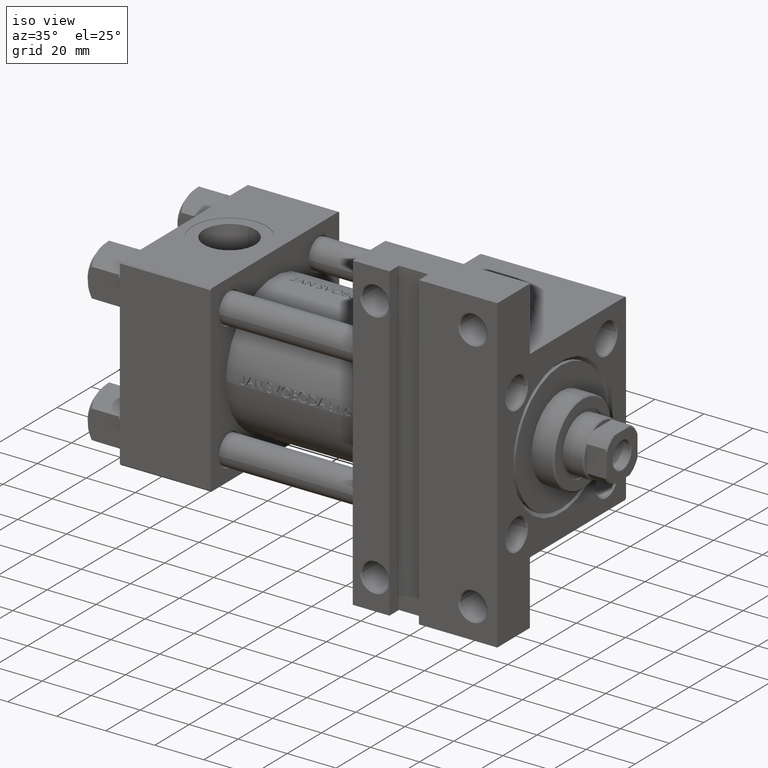
[diagram: clean part render]
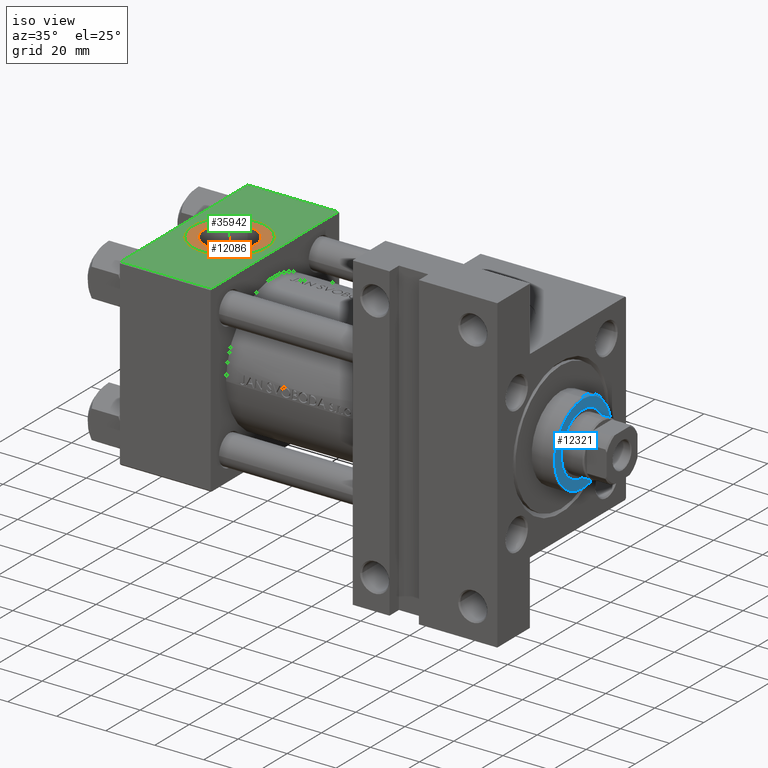
[diagram: same view with three faces highlighted in distinct colors, each labeled with its STEP entity id]
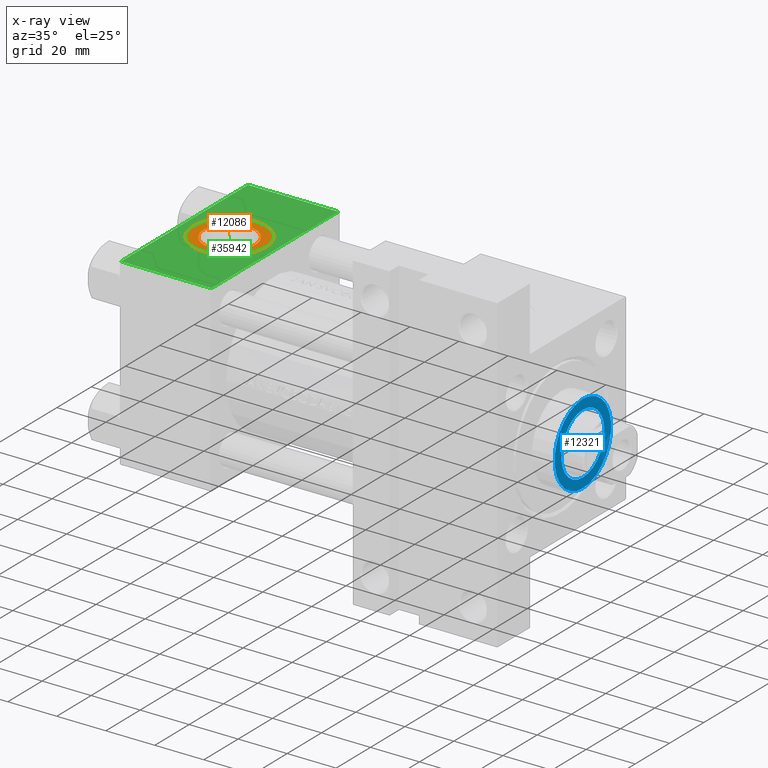
[diagram: x-ray of the same camera — body ghosted, the three highlighted faces saturated]
A machine part, iso view with three faces highlighted in distinct colors.
The next image is the same camera in x-ray (body ghosted, the three faces saturated) — at least one of them is partly hidden behind the body in this view.
Their STEP definitions:

[orange] entity #12086 — the highlighted planar face has unit normal (0, -0, 1).
#870 = DIRECTION ( 'NONE',  ( 0.000000000000000000, 0.000000000000000000, -1.000000000000000000 ) ) ;
#1218 = ORIENTED_EDGE ( 'NONE', *, *, #2756, .F. ) ;
#2756 = EDGE_CURVE ( 'NONE', #23813, #21137, #5189, .T. ) ;
#5116 = DIRECTION ( 'NONE',  ( 0.000000000000000000, -1.000000000000000000, -8.673617379884036705E-17 ) ) ;
#5189 = CIRCLE ( 'NONE', #33264, 10.48000000000000043 ) ;
#5304 = CIRCLE ( 'NONE', #27757, 15.00000000000000178 ) ;
#6043 = FACE_OUTER_BOUND ( 'NONE', #12647, .T. ) ;
#7810 = AXIS2_PLACEMENT_3D ( 'NONE', #10554, #21359, #13811 ) ;
#10554 = CARTESIAN_POINT ( 'NONE',  ( 18.50000000000000000, -37.30000000000000426, -3.452099717193846907E-15 ) ) ;
#10679 = AXIS2_PLACEMENT_3D ( 'NONE', #42204, #16035, #37914 ) ;
#12086 = ADVANCED_FACE ( 'NONE', ( #44734, #6043 ), #25625, .T. ) ;
#12571 = CARTESIAN_POINT ( 'NONE',  ( 18.50000000000000000, -37.30000000000000426, -3.452099717193846907E-15 ) ) ;
#12647 = EDGE_LOOP ( 'NONE', ( #23434, #36677 ) ) ;
#13087 = DIRECTION ( 'NONE',  ( 0.000000000000000000, 0.000000000000000000, -1.000000000000000000 ) ) ;
#13811 = DIRECTION ( 'NONE',  ( 0.000000000000000000, 8.673617379884036705E-17, -1.000000000000000000 ) ) ;
#14408 = CARTESIAN_POINT ( 'NONE',  ( 18.50000000000000000, -37.30000000000000426, 10.47999999999999687 ) ) ;
#14540 = VERTEX_POINT ( 'NONE', #15293 ) ;
#15293 = CARTESIAN_POINT ( 'NONE',  ( 18.50000000000000000, -37.30000000000000426, -15.00000000000000533 ) ) ;
#16035 = DIRECTION ( 'NONE',  ( 0.000000000000000000, -1.000000000000000000, -8.673617379884036705E-17 ) ) ;
#16357 = EDGE_CURVE ( 'NONE', #21137, #23813, #49203, .T. ) ;
#19907 = CARTESIAN_POINT ( 'NONE',  ( 18.50000000000000355, -37.30000000000000426, 14.99999999999999822 ) ) ;
#21137 = VERTEX_POINT ( 'NONE', #14408 ) ;
#21359 = DIRECTION ( 'NONE',  ( 0.000000000000000000, -1.000000000000000000, -8.673617379884036705E-17 ) ) ;
#23434 = ORIENTED_EDGE ( 'NONE', *, *, #35357, .T. ) ;
#23813 = VERTEX_POINT ( 'NONE', #30364 ) ;
#24855 = DIRECTION ( 'NONE',  ( 0.000000000000000000, -1.000000000000000000, -8.673617379884036705E-17 ) ) ;
#25625 = PLANE ( 'NONE',  #7810 ) ;
#27757 = AXIS2_PLACEMENT_3D ( 'NONE', #32154, #35939, #13087 ) ;
#30364 = CARTESIAN_POINT ( 'NONE',  ( 18.50000000000000000, -37.30000000000000426, -10.48000000000000398 ) ) ;
#32154 = CARTESIAN_POINT ( 'NONE',  ( 18.50000000000000000, -37.30000000000000426, -3.452099717193846907E-15 ) ) ;
#33264 = AXIS2_PLACEMENT_3D ( 'NONE', #12571, #24855, #43973 ) ;
#35357 = EDGE_CURVE ( 'NONE', #14540, #44484, #40405, .T. ) ;
#35939 = DIRECTION ( 'NONE',  ( 0.000000000000000000, -1.000000000000000000, -8.673617379884036705E-17 ) ) ;
#36677 = ORIENTED_EDGE ( 'NONE', *, *, #48534, .T. ) ;
#37914 = DIRECTION ( 'NONE',  ( 0.000000000000000000, 0.000000000000000000, -1.000000000000000000 ) ) ;
#40405 = CIRCLE ( 'NONE', #47628, 15.00000000000000178 ) ;
#40653 = EDGE_LOOP ( 'NONE', ( #1218, #49363 ) ) ;
#42204 = CARTESIAN_POINT ( 'NONE',  ( 18.50000000000000000, -37.30000000000000426, -3.452099717193846907E-15 ) ) ;
#43973 = DIRECTION ( 'NONE',  ( 0.000000000000000000, 0.000000000000000000, -1.000000000000000000 ) ) ;
#44484 = VERTEX_POINT ( 'NONE', #19907 ) ;
#44734 = FACE_BOUND ( 'NONE', #40653, .T. ) ;
#47578 = CARTESIAN_POINT ( 'NONE',  ( 18.50000000000000000, -37.30000000000000426, -3.452099717193846907E-15 ) ) ;
#47628 = AXIS2_PLACEMENT_3D ( 'NONE', #47578, #5116, #870 ) ;
#48534 = EDGE_CURVE ( 'NONE', #44484, #14540, #5304, .T. ) ;
#49203 = CIRCLE ( 'NONE', #10679, 10.48000000000000043 ) ;
#49363 = ORIENTED_EDGE ( 'NONE', *, *, #16357, .F. ) ;

[blue] entity #12321 — the highlighted planar face has unit normal (1, 0, 0).
#2052 = DIRECTION ( 'NONE',  ( 1.000000000000000000, 0.000000000000000000, 0.000000000000000000 ) ) ;
#3350 = DIRECTION ( 'NONE',  ( 1.000000000000000000, 0.000000000000000000, 0.000000000000000000 ) ) ;
#3901 = PLANE ( 'NONE',  #23832 ) ;
#4241 = EDGE_CURVE ( 'NONE', #42235, #14366, #5544, .T. ) ;
#4727 = CARTESIAN_POINT ( 'NONE',  ( 12.50000000000000000, 0.000000000000000000, 37.69999999999999574 ) ) ;
#5161 = DIRECTION ( 'NONE',  ( 0.000000000000000000, 0.000000000000000000, 1.000000000000000000 ) ) ;
#5174 = CARTESIAN_POINT ( 'NONE',  ( -12.50000000000000000, 1.530808498934191521E-15, 37.69999999999999574 ) ) ;
#5544 = CIRCLE ( 'NONE', #33621, 16.50000000000000000 ) ;
#5553 = EDGE_CURVE ( 'NONE', #14366, #42235, #38080, .T. ) ;
#6067 = EDGE_LOOP ( 'NONE', ( #23443, #25210 ) ) ;
#7106 = CARTESIAN_POINT ( 'NONE',  ( 0.000000000000000000, 0.000000000000000000, 37.69999999999999574 ) ) ;
#8443 = CARTESIAN_POINT ( 'NONE',  ( 0.000000000000000000, 0.000000000000000000, 37.69999999999999574 ) ) ;
#8829 = CARTESIAN_POINT ( 'NONE',  ( 0.000000000000000000, 0.000000000000000000, 37.69999999999999574 ) ) ;
#9228 = AXIS2_PLACEMENT_3D ( 'NONE', #8829, #40468, #2052 ) ;
#11004 = CIRCLE ( 'NONE', #21434, 12.50000000000000000 ) ;
#12321 = ADVANCED_FACE ( 'NONE', ( #26744, #42082 ), #3901, .T. ) ;
#12388 = EDGE_CURVE ( 'NONE', #37456, #32998, #11004, .T. ) ;
#14366 = VERTEX_POINT ( 'NONE', #42084 ) ;
#14505 = DIRECTION ( 'NONE',  ( 1.000000000000000000, 0.000000000000000000, -0.000000000000000000 ) ) ;
#16645 = AXIS2_PLACEMENT_3D ( 'NONE', #31941, #36215, #24916 ) ;
#18482 = ORIENTED_EDGE ( 'NONE', *, *, #4241, .T. ) ;
#21434 = AXIS2_PLACEMENT_3D ( 'NONE', #7106, #44808, #3350 ) ;
#22619 = EDGE_LOOP ( 'NONE', ( #18482, #48230 ) ) ;
#23443 = ORIENTED_EDGE ( 'NONE', *, *, #43279, .F. ) ;
#23832 = AXIS2_PLACEMENT_3D ( 'NONE', #26997, #48944, #14505 ) ;
#24916 = DIRECTION ( 'NONE',  ( 1.000000000000000000, 0.000000000000000000, 0.000000000000000000 ) ) ;
#25210 = ORIENTED_EDGE ( 'NONE', *, *, #12388, .F. ) ;
#26744 = FACE_BOUND ( 'NONE', #6067, .T. ) ;
#26997 = CARTESIAN_POINT ( 'NONE',  ( 0.000000000000000000, 0.000000000000000000, 37.69999999999999574 ) ) ;
#31110 = CIRCLE ( 'NONE', #16645, 12.50000000000000000 ) ;
#31941 = CARTESIAN_POINT ( 'NONE',  ( 0.000000000000000000, 0.000000000000000000, 37.69999999999999574 ) ) ;
#32263 = DIRECTION ( 'NONE',  ( 1.000000000000000000, 0.000000000000000000, 0.000000000000000000 ) ) ;
#32998 = VERTEX_POINT ( 'NONE', #4727 ) ;
#33621 = AXIS2_PLACEMENT_3D ( 'NONE', #8443, #5161, #32263 ) ;
#36215 = DIRECTION ( 'NONE',  ( 0.000000000000000000, 0.000000000000000000, 1.000000000000000000 ) ) ;
#37456 = VERTEX_POINT ( 'NONE', #5174 ) ;
#38080 = CIRCLE ( 'NONE', #9228, 16.50000000000000000 ) ;
#40468 = DIRECTION ( 'NONE',  ( 0.000000000000000000, 0.000000000000000000, 1.000000000000000000 ) ) ;
#42082 = FACE_OUTER_BOUND ( 'NONE', #22619, .T. ) ;
#42084 = CARTESIAN_POINT ( 'NONE',  ( 16.50000000000000000, 2.051283388571816887E-15, 37.69999999999999574 ) ) ;
#42235 = VERTEX_POINT ( 'NONE', #43334 ) ;
#43279 = EDGE_CURVE ( 'NONE', #32998, #37456, #31110, .T. ) ;
#43334 = CARTESIAN_POINT ( 'NONE',  ( -16.50000000000000000, 0.000000000000000000, 37.69999999999999574 ) ) ;
#44808 = DIRECTION ( 'NONE',  ( 0.000000000000000000, 0.000000000000000000, 1.000000000000000000 ) ) ;
#48230 = ORIENTED_EDGE ( 'NONE', *, *, #5553, .T. ) ;
#48944 = DIRECTION ( 'NONE',  ( 0.000000000000000000, 0.000000000000000000, 1.000000000000000000 ) ) ;

[green] entity #35942 — the highlighted planar face has unit normal (0, 0, -1).
#1155 = CARTESIAN_POINT ( 'NONE',  ( 37.00000000000000000, -37.50000000000000711, 37.49999999999999289 ) ) ;
#4292 = EDGE_CURVE ( 'NONE', #48717, #13677, #16451, .T. ) ;
#5359 = CARTESIAN_POINT ( 'NONE',  ( 0.000000000000000000, -37.50000000000000711, 37.49999999999999289 ) ) ;
#6573 = FACE_OUTER_BOUND ( 'NONE', #32437, .T. ) ;
#6830 = FACE_BOUND ( 'NONE', #32784, .T. ) ;
#7077 = DIRECTION ( 'NONE',  ( 0.000000000000000000, -9.251858538542971581E-17, 1.000000000000000000 ) ) ;
#7934 = ORIENTED_EDGE ( 'NONE', *, *, #12975, .T. ) ;
#8286 = CARTESIAN_POINT ( 'NONE',  ( 18.50000000000000355, -37.50000000000000711, 14.99999999999999822 ) ) ;
#9125 = CARTESIAN_POINT ( 'NONE',  ( 18.50000000000000000, -37.50000000000000711, -3.469446951953614978E-15 ) ) ;
#9923 = DIRECTION ( 'NONE',  ( -1.000000000000000000, 0.000000000000000000, 0.000000000000000000 ) ) ;
#10516 = CIRCLE ( 'NONE', #21725, 15.00000000000000178 ) ;
#10633 = EDGE_CURVE ( 'NONE', #48717, #35979, #10922, .T. ) ;
#10858 = EDGE_CURVE ( 'NONE', #36835, #12864, #30396, .T. ) ;
#10922 = LINE ( 'NONE', #13681, #19953 ) ;
#12404 = DIRECTION ( 'NONE',  ( 0.000000000000000000, 0.000000000000000000, -1.000000000000000000 ) ) ;
#12864 = VERTEX_POINT ( 'NONE', #8286 ) ;
#12975 = EDGE_CURVE ( 'NONE', #35979, #35706, #40266, .T. ) ;
#13677 = VERTEX_POINT ( 'NONE', #34398 ) ;
#13681 = CARTESIAN_POINT ( 'NONE',  ( 37.00000000000000000, -37.50000000000000711, 36.99999999999999289 ) ) ;
#14719 = AXIS2_PLACEMENT_3D ( 'NONE', #18123, #44773, #7077 ) ;
#15032 = ORIENTED_EDGE ( 'NONE', *, *, #10633, .T. ) ;
#16451 = LINE ( 'NONE', #1155, #40050 ) ;
#17145 = DIRECTION ( 'NONE',  ( 0.000000000000000000, -1.000000000000000000, -8.673617379884036705E-17 ) ) ;
#17630 = ORIENTED_EDGE ( 'NONE', *, *, #29317, .F. ) ;
#18123 = CARTESIAN_POINT ( 'NONE',  ( 37.00000000000000000, -37.50000000000000711, 37.49999999999999289 ) ) ;
#18841 = ORIENTED_EDGE ( 'NONE', *, *, #4292, .F. ) ;
#19182 = CARTESIAN_POINT ( 'NONE',  ( 37.00000000000000000, -37.50000000000000000, -37.00000000000003553 ) ) ;
#19718 = ORIENTED_EDGE ( 'NONE', *, *, #10858, .F. ) ;
#19953 = VECTOR ( 'NONE', #9923, 1000.000000000000000 ) ;
#20264 = VECTOR ( 'NONE', #37300, 1000.000000000000000 ) ;
#20919 = DIRECTION ( 'NONE',  ( 0.000000000000000000, 9.251858538542971581E-17, -1.000000000000000000 ) ) ;
#21602 = CARTESIAN_POINT ( 'NONE',  ( 37.00000000000000000, -37.50000000000000711, 36.99999999999999289 ) ) ;
#21725 = AXIS2_PLACEMENT_3D ( 'NONE', #38919, #28352, #31369 ) ;
#25420 = PLANE ( 'NONE',  #14719 ) ;
#25568 = AXIS2_PLACEMENT_3D ( 'NONE', #9125, #17145, #12404 ) ;
#28352 = DIRECTION ( 'NONE',  ( 0.000000000000000000, -1.000000000000000000, -8.673617379884036705E-17 ) ) ;
#29317 = EDGE_CURVE ( 'NONE', #12864, #36835, #10516, .T. ) ;
#29677 = CARTESIAN_POINT ( 'NONE',  ( 0.000000000000000000, -37.50000000000000711, 36.99999999999999289 ) ) ;
#30396 = CIRCLE ( 'NONE', #25568, 15.00000000000000178 ) ;
#31369 = DIRECTION ( 'NONE',  ( 0.000000000000000000, 0.000000000000000000, -1.000000000000000000 ) ) ;
#31815 = VECTOR ( 'NONE', #20919, 1000.000000000000000 ) ;
#32437 = EDGE_LOOP ( 'NONE', ( #7934, #42147, #18841, #15032 ) ) ;
#32784 = EDGE_LOOP ( 'NONE', ( #19718, #17630 ) ) ;
#34398 = CARTESIAN_POINT ( 'NONE',  ( 37.00000000000000000, -37.50000000000000000, -37.00000000000003553 ) ) ;
#35706 = VERTEX_POINT ( 'NONE', #49657 ) ;
#35942 = ADVANCED_FACE ( 'NONE', ( #6830, #6573 ), #25420, .F. ) ;
#35979 = VERTEX_POINT ( 'NONE', #29677 ) ;
#36833 = EDGE_CURVE ( 'NONE', #35706, #13677, #37783, .T. ) ;
#36835 = VERTEX_POINT ( 'NONE', #37556 ) ;
#37300 = DIRECTION ( 'NONE',  ( 1.000000000000000000, 0.000000000000000000, 0.000000000000000000 ) ) ;
#37556 = CARTESIAN_POINT ( 'NONE',  ( 18.50000000000000000, -37.50000000000000711, -15.00000000000000533 ) ) ;
#37783 = LINE ( 'NONE', #19182, #20264 ) ;
#38919 = CARTESIAN_POINT ( 'NONE',  ( 18.50000000000000000, -37.50000000000000711, -3.469446951953614978E-15 ) ) ;
#40050 = VECTOR ( 'NONE', #43603, 1000.000000000000000 ) ;
#40266 = LINE ( 'NONE', #5359, #31815 ) ;
#42147 = ORIENTED_EDGE ( 'NONE', *, *, #36833, .T. ) ;
#43603 = DIRECTION ( 'NONE',  ( 0.000000000000000000, 9.251858538542971581E-17, -1.000000000000000000 ) ) ;
#44773 = DIRECTION ( 'NONE',  ( -0.000000000000000000, 1.000000000000000000, 9.251858538542971581E-17 ) ) ;
#48717 = VERTEX_POINT ( 'NONE', #21602 ) ;
#49657 = CARTESIAN_POINT ( 'NONE',  ( 0.000000000000000000, -37.50000000000000000, -37.00000000000003553 ) ) ;